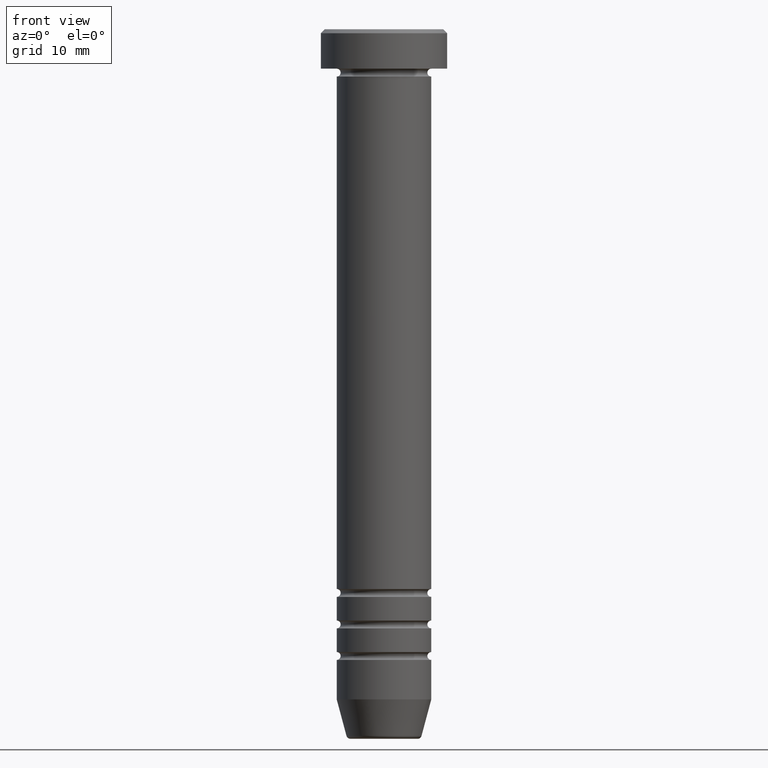
[diagram: clean part render]
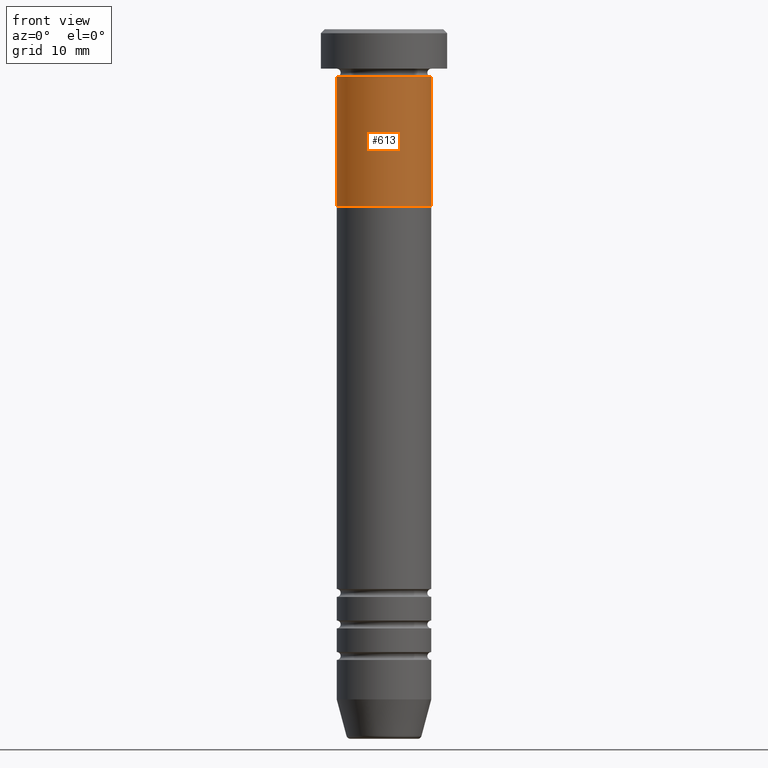
[diagram: same view with one face highlighted and labeled with its STEP entity id]
A machine part, front view. The second image highlights one B-rep face of the part: STEP entity #613.
In plain terms, the highlighted cylindrical surface (partial cylindrical patch) has radius 6 mm, axis along (-0, -0, 1).
Its self-contained STEP definition (entity closure, byte-faithful):
#6 = VECTOR ( 'NONE', #440, 1000.000000000000000 ) ;
#60 = CARTESIAN_POINT ( 'NONE',  ( 0.000000000000000000, 0.000000000000000000, -22.50000000000000000 ) ) ;
#89 = AXIS2_PLACEMENT_3D ( 'NONE', #60, #464, #623 ) ;
#128 = ORIENTED_EDGE ( 'NONE', *, *, #836, .T. ) ;
#201 = DIRECTION ( 'NONE',  ( 1.000000000000000000, 0.000000000000000000, 0.000000000000000000 ) ) ;
#239 = VERTEX_POINT ( 'NONE', #723 ) ;
#256 = CARTESIAN_POINT ( 'NONE',  ( 6.000000000000000000, 0.000000000000000000, -22.50000000000000000 ) ) ;
#265 = CYLINDRICAL_SURFACE ( 'NONE', #848, 6.000000000000000000 ) ;
#274 = LINE ( 'NONE', #696, #6 ) ;
#291 = DIRECTION ( 'NONE',  ( -0.000000000000000000, -0.000000000000000000, 1.000000000000000000 ) ) ;
#313 = CARTESIAN_POINT ( 'NONE',  ( -6.000000000000000000, 7.347880794884119736E-16, -22.50000000000000000 ) ) ;
#330 = EDGE_CURVE ( 'NONE', #869, #239, #354, .T. ) ;
#354 = LINE ( 'NONE', #671, #495 ) ;
#424 = DIRECTION ( 'NONE',  ( 1.000000000000000000, 0.000000000000000000, 0.000000000000000000 ) ) ;
#440 = DIRECTION ( 'NONE',  ( -0.000000000000000000, -0.000000000000000000, 1.000000000000000000 ) ) ;
#464 = DIRECTION ( 'NONE',  ( -0.000000000000000000, -0.000000000000000000, 1.000000000000000000 ) ) ;
#484 = VERTEX_POINT ( 'NONE', #1012 ) ;
#495 = VECTOR ( 'NONE', #999, 1000.000000000000000 ) ;
#498 = AXIS2_PLACEMENT_3D ( 'NONE', #864, #291, #201 ) ;
#506 = CARTESIAN_POINT ( 'NONE',  ( 0.000000000000000000, 0.000000000000000000, 0.000000000000000000 ) ) ;
#567 = VERTEX_POINT ( 'NONE', #256 ) ;
#569 = EDGE_CURVE ( 'NONE', #567, #484, #274, .T. ) ;
#601 = FACE_OUTER_BOUND ( 'NONE', #875, .T. ) ;
#613 = ADVANCED_FACE ( 'NONE', ( #601 ), #265, .T. ) ;
#623 = DIRECTION ( 'NONE',  ( 1.000000000000000000, 0.000000000000000000, 0.000000000000000000 ) ) ;
#671 = CARTESIAN_POINT ( 'NONE',  ( -6.000000000000000000, 7.347880794884119736E-16, 0.000000000000000000 ) ) ;
#696 = CARTESIAN_POINT ( 'NONE',  ( 6.000000000000000000, 0.000000000000000000, 0.000000000000000000 ) ) ;
#717 = EDGE_CURVE ( 'NONE', #239, #484, #718, .T. ) ;
#718 = CIRCLE ( 'NONE', #498, 6.000000000000000000 ) ;
#723 = CARTESIAN_POINT ( 'NONE',  ( -6.000000000000000000, 7.347880794884119736E-16, -6.000000000000001776 ) ) ;
#754 = ORIENTED_EDGE ( 'NONE', *, *, #569, .T. ) ;
#764 = CIRCLE ( 'NONE', #89, 6.000000000000000000 ) ;
#836 = EDGE_CURVE ( 'NONE', #869, #567, #764, .T. ) ;
#848 = AXIS2_PLACEMENT_3D ( 'NONE', #506, #860, #424 ) ;
#857 = ORIENTED_EDGE ( 'NONE', *, *, #717, .F. ) ;
#860 = DIRECTION ( 'NONE',  ( -0.000000000000000000, -0.000000000000000000, 1.000000000000000000 ) ) ;
#864 = CARTESIAN_POINT ( 'NONE',  ( 0.000000000000000000, 0.000000000000000000, -6.000000000000001776 ) ) ;
#869 = VERTEX_POINT ( 'NONE', #313 ) ;
#875 = EDGE_LOOP ( 'NONE', ( #988, #128, #754, #857 ) ) ;
#988 = ORIENTED_EDGE ( 'NONE', *, *, #330, .F. ) ;
#999 = DIRECTION ( 'NONE',  ( -0.000000000000000000, -0.000000000000000000, 1.000000000000000000 ) ) ;
#1012 = CARTESIAN_POINT ( 'NONE',  ( 6.000000000000000000, 0.000000000000000000, -6.000000000000001776 ) ) ;